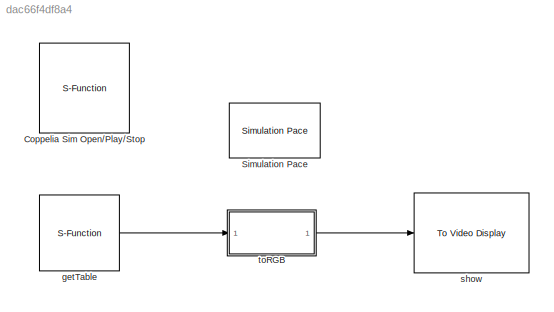
MODEL slx_dac66f4df8a4
KIND model
CONFIG AbsTol = auto
CONFIG EnableMultiTasking = off
CONFIG FixedStep = auto
CONFIG MaxStep = auto
CONFIG MinStep = auto
CONFIG RelTol = 1e-3
CONFIG SampleTimeConstraint = Unconstrained
CONFIG Solver = FixedStepDiscrete
CONFIG SolverName = FixedStepDiscrete
CONFIG StartTime = 0.0
CONFIG StopTime = inf
BLOCK [S-Function] Coppelia Sim Open//Play//Stop
  EnableBusSupport = off
  FunctionName = vrepCommand
  Parameters = scene
  Ports = []
  SFcnIsStateOwnerBlock = off
  SFunctionDeploymentMode = off
BLOCK [Reference] Simulation Pace  REF=aerolibanimutils/Simulation Pace
  AttributesFormatString = %<SleepMode>\n%<SimulationPace> sec/sec
  Ports = []
  SourceBlock = aerolibanimutils/Simulation Pace
  SourceProductBaseCode = AE
  SourceType = Simulation Pace
BLOCK [S-Function] getTable
  EnableBusSupport = off
  FunctionName = gettable
  Parameters = tname
  Ports = [0, 1]
  SFcnIsStateOwnerBlock = off
  SFunctionDeploymentMode = off
BLOCK [Reference] show  REF=visionsinks/To Video Display
  Ports = [1]
  SourceBlock = visionsinks/To Video Display
  SourceProductBaseCode = VP
  SourceType = To Video Display
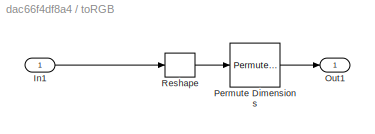
BLOCK [SubSystem] toRGB 
  Ports = [1, 1]
  RequestExecContextInheritance = off
BLOCK [Inport] toRGB /In1
  OutDataTypeStr = uint8
  PortDimensions = 512*512*3
BLOCK [Outport] toRGB /Out1
  VectorParamsAs1DForOutWhenUnconnected = off
BLOCK [PermuteDimensions] toRGB /Permute Dimensions
  Order = [3 2 1]
BLOCK [Reshape] toRGB /Reshape
  OutputDimensionality = Customize
  OutputDimensions = [3,ResX,ResY]
  Ports = [1, 1]
LINE getTable:1 -> toRGB :1
LINE toRGB /In1:1 -> toRGB /Reshape:1
LINE toRGB /Permute Dimensions:1 -> toRGB /Out1:1
LINE toRGB /Reshape:1 -> toRGB /Permute Dimensions:1
LINE toRGB :1 -> show:1
